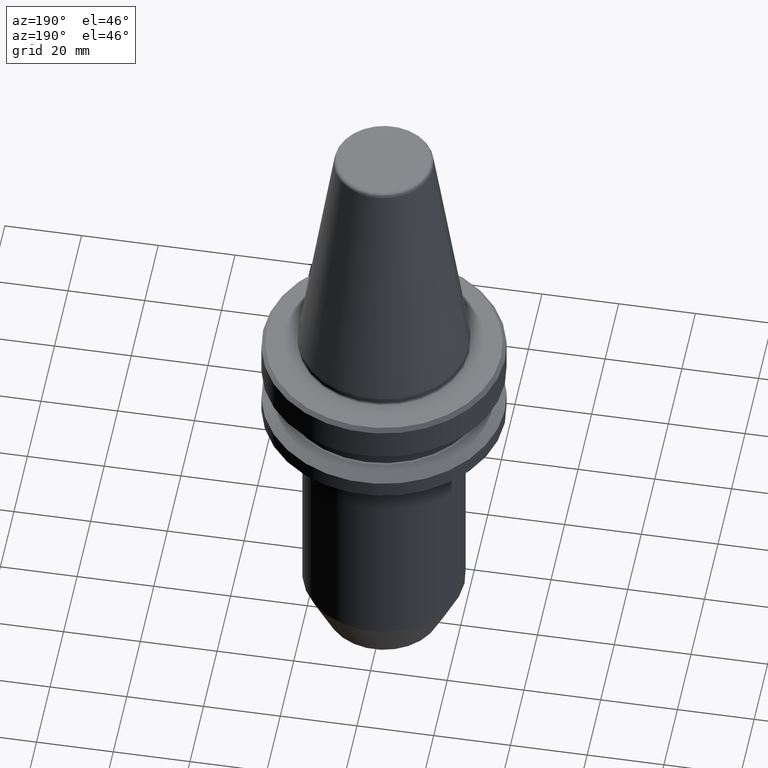
[diagram: clean part render]
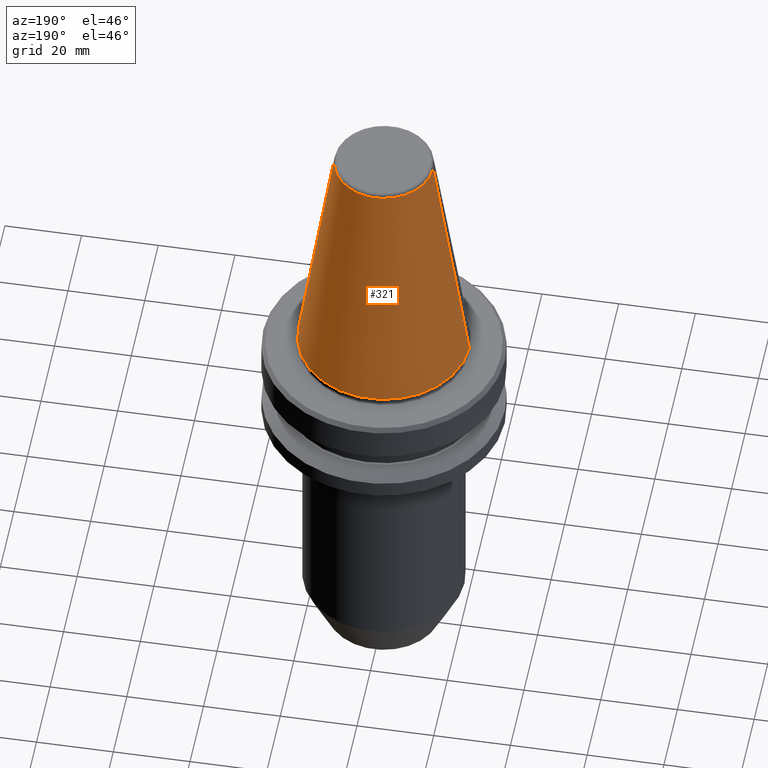
[diagram: same view with one face highlighted and labeled with its STEP entity id]
A machine part, auxiliary view. The second image highlights one B-rep face of the part: STEP entity #321.
In plain terms, the highlighted conical surface has half-angle 8.297 deg.
Its self-contained STEP definition (entity closure, byte-faithful):
#48 = VECTOR ( 'NONE', #735, 999.9999999999998900 ) ;
#58 = VECTOR ( 'NONE', #888, 999.9999999999998900 ) ;
#64 = CARTESIAN_POINT ( 'NONE',  ( 0.0000000000000000000, 0.0000000000000000000, 0.0000000000000000000 ) ) ;
#68 = CARTESIAN_POINT ( 'NONE',  ( 22.22500000000005100, 0.0000000000000000000, 0.0000000000000000000 ) ) ;
#118 = CARTESIAN_POINT ( 'NONE',  ( 0.0000000000000000000, 0.0000000000000000000, 64.54430818888890500 ) ) ;
#119 = EDGE_CURVE ( 'NONE', #249, #706, #660, .T. ) ;
#121 = EDGE_LOOP ( 'NONE', ( #233, #998, #911, #679 ) ) ;
#160 = DIRECTION ( 'NONE',  ( 1.000000000000000000, 0.0000000000000000000, 0.0000000000000000000 ) ) ;
#233 = ORIENTED_EDGE ( 'NONE', *, *, #566, .F. ) ;
#249 = VERTEX_POINT ( 'NONE', #68 ) ;
#251 = DIRECTION ( 'NONE',  ( 0.0000000000000000000, 0.0000000000000000000, -1.000000000000000000 ) ) ;
#276 = CARTESIAN_POINT ( 'NONE',  ( 0.0000000000000000000, 0.0000000000000000000, 0.0000000000000000000 ) ) ;
#284 = FACE_OUTER_BOUND ( 'NONE', #121, .T. ) ;
#321 = ADVANCED_FACE ( 'NONE', ( #284 ), #475, .T. ) ;
#350 = EDGE_CURVE ( 'NONE', #826, #249, #941, .T. ) ;
#456 = CARTESIAN_POINT ( 'NONE',  ( -12.81220206925746700, 1.569042225414525300E-015, 64.54430818888890500 ) ) ;
#475 = CONICAL_SURFACE ( 'NONE', #745, 22.22500000000005100, 0.1448138077623185600 ) ;
#492 = LINE ( 'NONE', #685, #58 ) ;
#531 = CIRCLE ( 'NONE', #887, 12.81220206925748400 ) ;
#534 = AXIS2_PLACEMENT_3D ( 'NONE', #276, #830, #160 ) ;
#564 = DIRECTION ( 'NONE',  ( -0.0000000000000000000, -0.0000000000000000000, 1.000000000000000000 ) ) ;
#566 = EDGE_CURVE ( 'NONE', #826, #767, #531, .T. ) ;
#614 = DIRECTION ( 'NONE',  ( -1.000000000000000000, 0.0000000000000000000, 0.0000000000000000000 ) ) ;
#660 = CIRCLE ( 'NONE', #534, 22.22500000000005100 ) ;
#678 = DIRECTION ( 'NONE',  ( 1.000000000000000000, 0.0000000000000000000, 0.0000000000000000000 ) ) ;
#679 = ORIENTED_EDGE ( 'NONE', *, *, #801, .F. ) ;
#685 = CARTESIAN_POINT ( 'NONE',  ( -22.22500000000005100, 0.0000000000000000000, 0.0000000000000000000 ) ) ;
#706 = VERTEX_POINT ( 'NONE', #898 ) ;
#735 = DIRECTION ( 'NONE',  ( 0.1443081888881783400, 1.767265616126592900E-017, -0.9895327920891828800 ) ) ;
#745 = AXIS2_PLACEMENT_3D ( 'NONE', #64, #251, #614 ) ;
#763 = CARTESIAN_POINT ( 'NONE',  ( 12.81220206925746700, 0.0000000000000000000, 64.54430818888890500 ) ) ;
#767 = VERTEX_POINT ( 'NONE', #456 ) ;
#801 = EDGE_CURVE ( 'NONE', #767, #706, #492, .T. ) ;
#826 = VERTEX_POINT ( 'NONE', #763 ) ;
#830 = DIRECTION ( 'NONE',  ( -0.0000000000000000000, -0.0000000000000000000, 1.000000000000000000 ) ) ;
#887 = AXIS2_PLACEMENT_3D ( 'NONE', #118, #564, #678 ) ;
#888 = DIRECTION ( 'NONE',  ( -0.1443081888881783400, 0.0000000000000000000, -0.9895327920891828800 ) ) ;
#898 = CARTESIAN_POINT ( 'NONE',  ( -22.22500000000005100, 2.721777511104998800E-015, 0.0000000000000000000 ) ) ;
#911 = ORIENTED_EDGE ( 'NONE', *, *, #119, .T. ) ;
#941 = LINE ( 'NONE', #1018, #48 ) ;
#998 = ORIENTED_EDGE ( 'NONE', *, *, #350, .T. ) ;
#1018 = CARTESIAN_POINT ( 'NONE',  ( 22.22500000000005100, 2.721777511104998800E-015, 0.0000000000000000000 ) ) ;